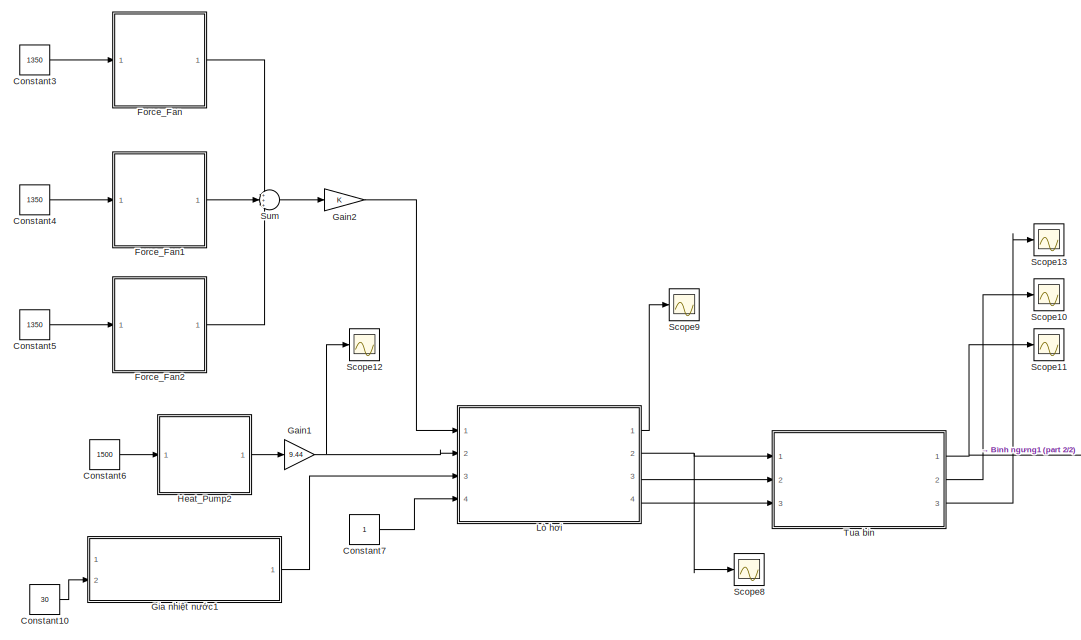
[diagram: root canvas - part 1/2, left side, full height]
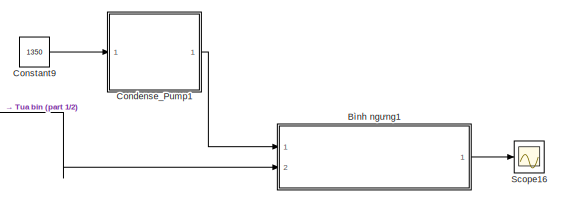
[diagram: root canvas - part 2/2, bottom right region]
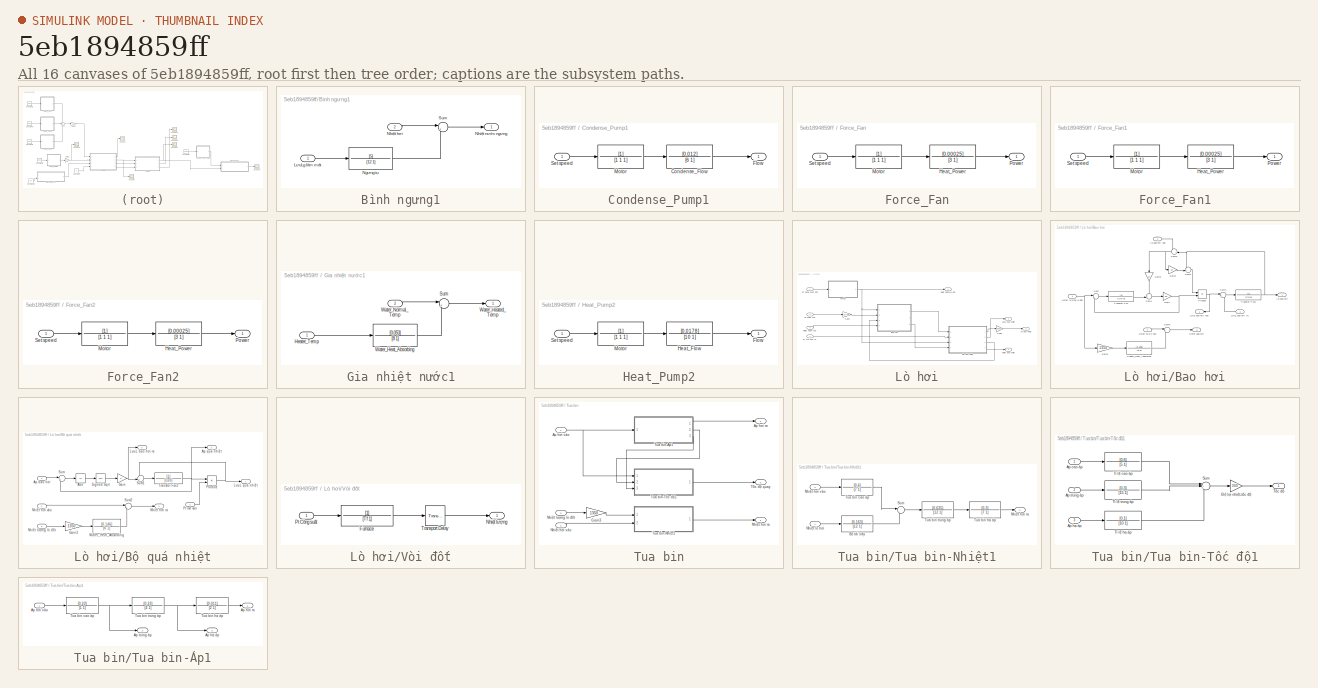
[diagram: thumbnail index - all 16 canvases of the model, root first then tree order]
MODEL slx_5eb1894859ff
KIND model
CONFIG AbsTol = auto
CONFIG EnableMultiTasking = off
CONFIG FixedStep = 0.05
CONFIG MaxStep = auto
CONFIG MinStep = auto
CONFIG RelTol = 1e-3
CONFIG SampleTimeConstraint = Unconstrained
CONFIG Solver = ode5
CONFIG SolverName = ode5
CONFIG StartTime = 0.0
CONFIG StopTime = 1000
BLOCK [SubSystem] Bình ngưng1
  Ports = [2, 1]
  RequestExecContextInheritance = off
BLOCK [Inport] Bình ngưng1/LưuLg làm mát
  IconDisplay = Port number
BLOCK [TransferFcn] Bình ngưng1/Ngưng tụ
  Denominator = [12 1]
  Numerator = [5]
BLOCK [Inport] Bình ngưng1/Nhiệt hơi
  IconDisplay = Port number
  Port = 2
BLOCK [Outport] Bình ngưng1/Nhiệt nước ngưng
  IconDisplay = Port number
BLOCK [Sum] Bình ngưng1/Sum
  IconShape = round
  InputSameDT = off
  Inputs = |+-
  OutDataTypeStr = Inherit: Inherit via internal rule
  Ports = [2, 1]
  SaturateOnIntegerOverflow = off
BLOCK [SubSystem] Condense_Pump1
  Ports = [1, 1]
  RequestExecContextInheritance = off
BLOCK [TransferFcn] Condense_Pump1/Condense_Flow
  Denominator = [6 1]
  Numerator = [0.012]
BLOCK [Outport] Condense_Pump1/Flow
  IconDisplay = Port number
BLOCK [TransferFcn] Condense_Pump1/Motor
  Denominator = [1 1 1]
BLOCK [Inport] Condense_Pump1/Set speed
  IconDisplay = Port number
BLOCK [Constant] Constant10
  Value = 30
BLOCK [Constant] Constant3
  Value = 1350
BLOCK [Constant] Constant4
  Value = 1350
BLOCK [Constant] Constant5
  Value = 1350
BLOCK [Constant] Constant6
  Value = 1500
BLOCK [Constant] Constant7
BLOCK [Constant] Constant9
  Value = 1350
BLOCK [SubSystem] Force_Fan
  Ports = [1, 1]
  RequestExecContextInheritance = off
BLOCK [TransferFcn] Force_Fan/Heat_Power
  Denominator = [3 1]
  Numerator = [0.00025]
BLOCK [TransferFcn] Force_Fan/Motor
  Denominator = [1 1 1]
BLOCK [Outport] Force_Fan/Power
  IconDisplay = Port number
BLOCK [Inport] Force_Fan/Set speed
  IconDisplay = Port number
BLOCK [SubSystem] Force_Fan1
  Ports = [1, 1]
  RequestExecContextInheritance = off
BLOCK [TransferFcn] Force_Fan1/Heat_Power
  Denominator = [3 1]
  Numerator = [0.00025]
BLOCK [TransferFcn] Force_Fan1/Motor
  Denominator = [1 1 1]
BLOCK [Outport] Force_Fan1/Power
  IconDisplay = Port number
BLOCK [Inport] Force_Fan1/Set speed
  IconDisplay = Port number
BLOCK [SubSystem] Force_Fan2
  Ports = [1, 1]
  RequestExecContextInheritance = off
BLOCK [TransferFcn] Force_Fan2/Heat_Power
  Denominator = [3 1]
  Numerator = [0.00025]
BLOCK [TransferFcn] Force_Fan2/Motor
  Denominator = [1 1 1]
BLOCK [Outport] Force_Fan2/Power
  IconDisplay = Port number
BLOCK [Inport] Force_Fan2/Set speed
  IconDisplay = Port number
BLOCK [Gain] Gain1
  Gain = 9.44
  OutDataTypeStr = Inherit: Inherit via internal rule
  ParamDataTypeStr = Inherit: Inherit via internal rule
  SaturateOnIntegerOverflow = off
BLOCK [Gain] Gain2
  OutDataTypeStr = Inherit: Inherit via internal rule
  ParamDataTypeStr = Inherit: Inherit via internal rule
  SaturateOnIntegerOverflow = off
BLOCK [SubSystem] Gia nhiệt nước1
  Ports = [2, 1]
  RequestExecContextInheritance = off
BLOCK [Inport] Gia nhiệt nước1/Heater_Temp
  IconDisplay = Port number
BLOCK [Sum] Gia nhiệt nước1/Sum
  IconShape = round
  InputSameDT = off
  Inputs = |++
  OutDataTypeStr = Inherit: Inherit via internal rule
  Ports = [2, 1]
  SaturateOnIntegerOverflow = off
BLOCK [TransferFcn] Gia nhiệt nước1/Water_Heat_Absorbing
  Denominator = [8 1]
  Numerator = [0.053]
BLOCK [Outport] Gia nhiệt nước1/Water_Heated_Temp
  IconDisplay = Port number
BLOCK [Inport] Gia nhiệt nước1/Water_Normal_Temp
  IconDisplay = Port number
  Port = 2
BLOCK [SubSystem] Heat_Pump2
  Ports = [1, 1]
  RequestExecContextInheritance = off
BLOCK [Outport] Heat_Pump2/Flow
  IconDisplay = Port number
BLOCK [TransferFcn] Heat_Pump2/Heat_Flow
  Denominator = [10 1]
  Numerator = [0.0178]
BLOCK [TransferFcn] Heat_Pump2/Motor
  Denominator = [1 1 1]
BLOCK [Inport] Heat_Pump2/Set speed
  IconDisplay = Port number
BLOCK [SubSystem] Lò hơi
  Ports = [4, 4]
  RequestExecContextInheritance = off
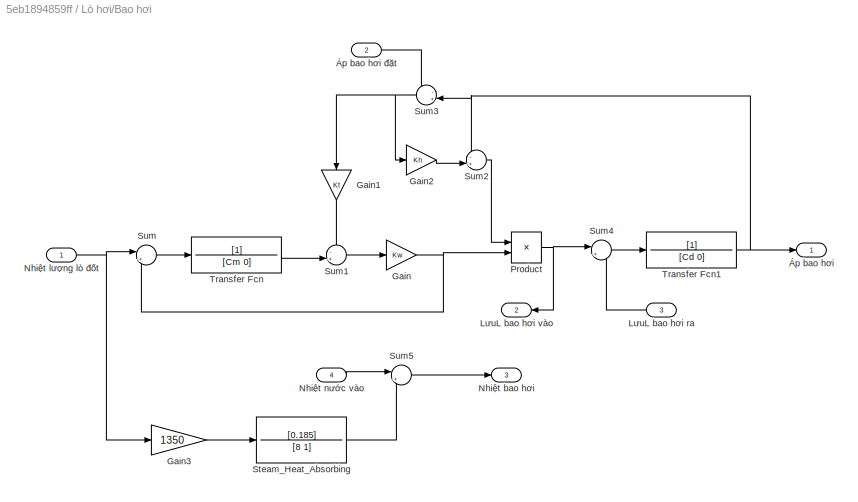
BLOCK [SubSystem] Lò hơi/Bao hơi
  Ports = [4, 3]
  RequestExecContextInheritance = off
BLOCK [Gain] Lò hơi/Bao hơi/Gain
  Gain = Kw
  OutDataTypeStr = Inherit: Inherit via internal rule
  ParamDataTypeStr = Inherit: Inherit via internal rule
  SaturateOnIntegerOverflow = off
BLOCK [Gain] Lò hơi/Bao hơi/Gain1
  Gain = Kt
  OutDataTypeStr = Inherit: Inherit via internal rule
  ParamDataTypeStr = Inherit: Inherit via internal rule
  SaturateOnIntegerOverflow = off
BLOCK [Gain] Lò hơi/Bao hơi/Gain2
  Gain = Kh
  OutDataTypeStr = Inherit: Inherit via internal rule
  ParamDataTypeStr = Inherit: Inherit via internal rule
  SaturateOnIntegerOverflow = off
BLOCK [Gain] Lò hơi/Bao hơi/Gain3
  Gain = 1350
  OutDataTypeStr = Inherit: Inherit via internal rule
  ParamDataTypeStr = Inherit: Inherit via internal rule
  SaturateOnIntegerOverflow = off
BLOCK [Inport] Lò hơi/Bao hơi/LưuL bao hơi ra
  IconDisplay = Port number
  Port = 3
BLOCK [Outport] Lò hơi/Bao hơi/LưuL bao hơi vào
  IconDisplay = Port number
  Port = 2
BLOCK [Outport] Lò hơi/Bao hơi/Nhiệt bao hơi
  IconDisplay = Port number
  Port = 3
BLOCK [Inport] Lò hơi/Bao hơi/Nhiệt lượng lò đốt
  IconDisplay = Port number
BLOCK [Inport] Lò hơi/Bao hơi/Nhiệt nước vào
  IconDisplay = Port number
  Port = 4
BLOCK [Product] Lò hơi/Bao hơi/Product
  InputSameDT = off
  OutDataTypeStr = Inherit: Inherit via internal rule
  Ports = [2, 1]
  RndMeth = Floor
  SaturateOnIntegerOverflow = off
BLOCK [TransferFcn] Lò hơi/Bao hơi/Steam_Heat_Absorbing
  Denominator = [8 1]
  Numerator = [0.185]
BLOCK [Sum] Lò hơi/Bao hơi/Sum
  IconShape = round
  InputSameDT = off
  Inputs = |+-
  OutDataTypeStr = Inherit: Inherit via internal rule
  Ports = [2, 1]
  SaturateOnIntegerOverflow = off
BLOCK [Sum] Lò hơi/Bao hơi/Sum1
  IconShape = round
  InputSameDT = off
  Inputs = -+|
  OutDataTypeStr = Inherit: Inherit via internal rule
  Ports = [2, 1]
  SaturateOnIntegerOverflow = off
BLOCK [Sum] Lò hơi/Bao hơi/Sum2
  IconShape = round
  InputSameDT = off
  Inputs = -+|
  OutDataTypeStr = Inherit: Inherit via internal rule
  Ports = [2, 1]
  SaturateOnIntegerOverflow = off
BLOCK [Sum] Lò hơi/Bao hơi/Sum3
  IconShape = round
  InputSameDT = off
  Inputs = -+|
  OutDataTypeStr = Inherit: Inherit via internal rule
  Ports = [2, 1]
  SaturateOnIntegerOverflow = off
BLOCK [Sum] Lò hơi/Bao hơi/Sum4
  IconShape = round
  InputSameDT = off
  Inputs = |+-
  OutDataTypeStr = Inherit: Inherit via internal rule
  Ports = [2, 1]
  SaturateOnIntegerOverflow = off
BLOCK [Sum] Lò hơi/Bao hơi/Sum5
  IconShape = round
  InputSameDT = off
  Inputs = |++
  OutDataTypeStr = Inherit: Inherit via internal rule
  Ports = [2, 1]
  SaturateOnIntegerOverflow = off
BLOCK [TransferFcn] Lò hơi/Bao hơi/Transfer Fcn
  Denominator = [Cm 0]
BLOCK [TransferFcn] Lò hơi/Bao hơi/Transfer Fcn1
  Denominator = [Cd 0]
BLOCK [Outport] Lò hơi/Bao hơi/Áp bao hơi
  IconDisplay = Port number
BLOCK [Inport] Lò hơi/Bao hơi/Áp bao hơi đặt
  IconDisplay = Port number
  Port = 2
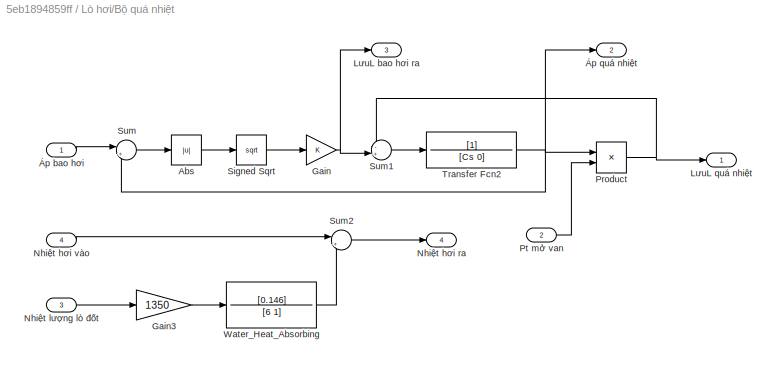
BLOCK [SubSystem] Lò hơi/Bộ quá nhiệt
  Ports = [4, 4]
  RequestExecContextInheritance = off
BLOCK [Abs] Lò hơi/Bộ quá nhiệt/Abs
  SaturateOnIntegerOverflow = off
BLOCK [Gain] Lò hơi/Bộ quá nhiệt/Gain
  Gain = K
  OutDataTypeStr = Inherit: Inherit via internal rule
  ParamDataTypeStr = Inherit: Inherit via internal rule
  SaturateOnIntegerOverflow = off
BLOCK [Gain] Lò hơi/Bộ quá nhiệt/Gain3
  Gain = 1350
  OutDataTypeStr = Inherit: Inherit via internal rule
  ParamDataTypeStr = Inherit: Inherit via internal rule
  SaturateOnIntegerOverflow = off
BLOCK [Outport] Lò hơi/Bộ quá nhiệt/LưuL bao hơi ra
  IconDisplay = Port number
  Port = 3
BLOCK [Outport] Lò hơi/Bộ quá nhiệt/LưuL quá nhiệt
  IconDisplay = Port number
BLOCK [Outport] Lò hơi/Bộ quá nhiệt/Nhiệt hơi ra
  IconDisplay = Port number
  Port = 4
BLOCK [Inport] Lò hơi/Bộ quá nhiệt/Nhiệt hơi vào
  IconDisplay = Port number
  Port = 4
BLOCK [Inport] Lò hơi/Bộ quá nhiệt/Nhiệt lượng lò đốt
  IconDisplay = Port number
  Port = 3
BLOCK [Product] Lò hơi/Bộ quá nhiệt/Product
  InputSameDT = off
  OutDataTypeStr = Inherit: Inherit via internal rule
  Ports = [2, 1]
  RndMeth = Floor
  SaturateOnIntegerOverflow = off
BLOCK [Inport] Lò hơi/Bộ quá nhiệt/Pt mở van
  IconDisplay = Port number
  Port = 2
BLOCK [Sqrt] Lò hơi/Bộ quá nhiệt/Signed Sqrt
BLOCK [Sum] Lò hơi/Bộ quá nhiệt/Sum
  IconShape = round
  InputSameDT = off
  Inputs = |+-
  OutDataTypeStr = Inherit: Inherit via internal rule
  Ports = [2, 1]
  SaturateOnIntegerOverflow = off
BLOCK [Sum] Lò hơi/Bộ quá nhiệt/Sum1
  IconShape = round
  InputSameDT = off
  Inputs = -+|
  OutDataTypeStr = Inherit: Inherit via internal rule
  Ports = [2, 1]
  SaturateOnIntegerOverflow = off
BLOCK [Sum] Lò hơi/Bộ quá nhiệt/Sum2
  IconShape = round
  InputSameDT = off
  Inputs = |++
  OutDataTypeStr = Inherit: Inherit via internal rule
  Ports = [2, 1]
  SaturateOnIntegerOverflow = off
BLOCK [TransferFcn] Lò hơi/Bộ quá nhiệt/Transfer Fcn2
  Denominator = [Cs 0]
BLOCK [TransferFcn] Lò hơi/Bộ quá nhiệt/Water_Heat_Absorbing
  Denominator = [6 1]
  Numerator = [0.146]
BLOCK [Inport] Lò hơi/Bộ quá nhiệt/Áp bao hơi
  IconDisplay = Port number
BLOCK [Outport] Lò hơi/Bộ quá nhiệt/Áp quá nhiệt
  IconDisplay = Port number
  Port = 2
BLOCK [Gain] Lò hơi/Gain1
  Gain = 10.476
  OutDataTypeStr = Inherit: Inherit via internal rule
  ParamDataTypeStr = Inherit: Inherit via internal rule
  SaturateOnIntegerOverflow = off
BLOCK [Gain] Lò hơi/Gain2
  Gain = 0.0954
  OutDataTypeStr = Inherit: Inherit via internal rule
  ParamDataTypeStr = Inherit: Inherit via internal rule
  SaturateOnIntegerOverflow = off
BLOCK [Outport] Lò hơi/LưuL quá nhiệt
  IconDisplay = Port number
BLOCK [Outport] Lò hơi/Nhiệt lượng lò đốt
  IconDisplay = Port number
  Port = 4
BLOCK [Inport] Lò hơi/Nhiệt nước vào
  IconDisplay = Port number
  Port = 3
BLOCK [Outport] Lò hơi/Nhiệt quá nhiệt
  IconDisplay = Port number
  Port = 3
BLOCK [Inport] Lò hơi/Pt Công suất đốt
  IconDisplay = Port number
BLOCK [Inport] Lò hơi/Pt mở van ra
  IconDisplay = Port number
  Port = 4
BLOCK [SubSystem] Lò hơi/Vòi đốt
  Ports = [1, 1]
  RequestExecContextInheritance = off
BLOCK [TransferFcn] Lò hơi/Vòi đốt/Furnace
  Denominator = [Tf 1]
BLOCK [Outport] Lò hơi/Vòi đốt/Nhiệt lượng
  IconDisplay = Port number
BLOCK [Inport] Lò hơi/Vòi đốt/Pt Công suất
  IconDisplay = Port number
BLOCK [TransportDelay] Lò hơi/Vòi đốt/Transport Delay
  DelayTime = Td
  Ports = [1, 1]
BLOCK [Inport] Lò hơi/Áp nước vào
  IconDisplay = Port number
  Port = 2
BLOCK [Outport] Lò hơi/Áp quá nhiệt
  IconDisplay = Port number
  Port = 2
BLOCK [Scope] Scope10
  Floating = off
  NumInputPorts = 1
  Ports = [1]
  ScopeSpecificationString = Simulink.scopes.TimeScopeBlockCfg('CurrentConfiguration', extmgr.ConfigurationSet(extmgr.Configuration('Core','General UI',true),extmgr.Configuration('Core','Source UI',true),extmgr.Configuration('Sources','WiredSimulink',true,'DataLoggingVariableName','ScopeData3'),extmgr.Configuration('Visuals','Time Domain',true,'SerializedDisplays',{struct('MinYLimReal','-0.01031','MaxYLimReal','0.09281','YLab...<+1412ch>
BLOCK [Scope] Scope11
  Floating = off
  NumInputPorts = 1
  Ports = [1]
  ScopeSpecificationString = Simulink.scopes.TimeScopeBlockCfg('CurrentConfiguration', extmgr.ConfigurationSet(extmgr.Configuration('Core','General UI',true),extmgr.Configuration('Core','Source UI',true),extmgr.Configuration('Sources','WiredSimulink',true,'DataLoggingVariableName','ScopeData4'),extmgr.Configuration('Visuals','Time Domain',true,'SerializedDisplays',{struct('MinYLimReal','-12.19729','MaxYLimReal','109.77557','Y...<+1451ch>
BLOCK [Scope] Scope12
  Floating = off
  NumInputPorts = 1
  Ports = [1]
  ScopeSpecificationString = Simulink.scopes.TimeScopeBlockCfg('CurrentConfiguration', extmgr.ConfigurationSet(extmgr.Configuration('Core','General UI',true),extmgr.Configuration('Core','Source UI',true),extmgr.Configuration('Sources','WiredSimulink',true,'DataLoggingVariableName','ScopeData5'),extmgr.Configuration('Visuals','Time Domain',true,'SerializedDisplays',{struct('MinYLimReal','-31.506','MaxYLimReal','283.554','YLabe...<+1436ch>
BLOCK [Scope] Scope13
  Floating = off
  NumInputPorts = 1
  Ports = [1]
  ScopeSpecificationString = Simulink.scopes.TimeScopeBlockCfg('CurrentConfiguration', extmgr.ConfigurationSet(extmgr.Configuration('Core','General UI',true),extmgr.Configuration('Core','Source UI',true),extmgr.Configuration('Sources','WiredSimulink',true,'DataLoggingVariableName','ScopeData1'),extmgr.Configuration('Visuals','Time Domain',true,'SerializedDisplays',{struct('MinYLimReal','-3584.83567','MaxYLimReal','32263.521',...<+1430ch>
BLOCK [Scope] Scope16
  Floating = off
  NumInputPorts = 1
  Ports = [1]
  ScopeSpecificationString = Simulink.scopes.TimeScopeBlockCfg('CurrentConfiguration', extmgr.ConfigurationSet(extmgr.Configuration('Core','General UI',true),extmgr.Configuration('Core','Source UI',true),extmgr.Configuration('Sources','WiredSimulink',true,'DataLoggingVariableName','ScopeData2'),extmgr.Configuration('Visuals','Time Domain',true,'SerializedDisplays',{struct('MinYLimReal','-83.14024','MaxYLimReal','27.65812','YL...<+1449ch>
BLOCK [Scope] Scope8
  Floating = off
  NumInputPorts = 1
  Ports = [1]
  ScopeSpecificationString = Simulink.scopes.TimeScopeBlockCfg('CurrentConfiguration', extmgr.ConfigurationSet(extmgr.Configuration('Core','General UI',true),extmgr.Configuration('Core','Source UI',true),extmgr.Configuration('Sources','WiredSimulink',true,'DataLoggingVariableName','ScopeData1'),extmgr.Configuration('Visuals','Time Domain',true,'SerializedDisplays',{struct('MinYLimReal','-23.05154','MaxYLimReal','207.4639','YL...<+1417ch>
BLOCK [Scope] Scope9
  Floating = off
  NumInputPorts = 1
  Ports = [1]
  ScopeSpecificationString = Simulink.scopes.TimeScopeBlockCfg('CurrentConfiguration', extmgr.ConfigurationSet(extmgr.Configuration('Core','General UI',true),extmgr.Configuration('Core','Source UI',true),extmgr.Configuration('Sources','WiredSimulink',true,'DataLoggingVariableName','ScopeData2'),extmgr.Configuration('Visuals','Time Domain',true,'SerializedDisplays',{struct('MinYLimReal','-144.97827','MaxYLimReal','1304.80443',...<+1429ch>
BLOCK [Sum] Sum
  IconShape = round
  InputSameDT = off
  Inputs = +++
  OutDataTypeStr = Inherit: Inherit via internal rule
  Ports = [3, 1]
  SaturateOnIntegerOverflow = off
BLOCK [SubSystem] Tua bin
  Ports = [3, 3]
  RequestExecContextInheritance = off
BLOCK [Gain] Tua bin/Gain3
  Gain = 1350
  OutDataTypeStr = Inherit: Inherit via internal rule
  ParamDataTypeStr = Inherit: Inherit via internal rule
  SaturateOnIntegerOverflow = off
BLOCK [Outport] Tua bin/Nhiệt hơi ra
  IconDisplay = Port number
BLOCK [Inport] Tua bin/Nhiệt hơi vào
  IconDisplay = Port number
  Port = 2
BLOCK [Inport] Tua bin/Nhiệt lượng lò đốt
  IconDisplay = Port number
  Port = 3
BLOCK [SubSystem] Tua bin/Tua bin-Nhiệt1
  Ports = [2, 1]
  RequestExecContextInheritance = off
BLOCK [TransferFcn] Tua bin/Tua bin-Nhiệt1/Bộ tái sấy
  Denominator = [12 1]
  Numerator = [0.163]
BLOCK [Outport] Tua bin/Tua bin-Nhiệt1/Nhiệt hơi ra
  IconDisplay = Port number
BLOCK [Inport] Tua bin/Tua bin-Nhiệt1/Nhiệt hơi vào
  IconDisplay = Port number
  Port = 2
BLOCK [Inport] Tua bin/Tua bin-Nhiệt1/Nhiệt lò hơi
  IconDisplay = Port number
BLOCK [Sum] Tua bin/Tua bin-Nhiệt1/Sum
  IconShape = round
  InputSameDT = off
  Inputs = |++
  OutDataTypeStr = Inherit: Inherit via internal rule
  Ports = [2, 1]
  SaturateOnIntegerOverflow = off
BLOCK [TransferFcn] Tua bin/Tua bin-Nhiệt1/Tua bin cao áp
  Denominator = [7 1]
  Numerator = [0.6]
BLOCK [TransferFcn] Tua bin/Tua bin-Nhiệt1/Tua bin hạ áp
  Denominator = [7 1]
  Numerator = [0.3]
BLOCK [TransferFcn] Tua bin/Tua bin-Nhiệt1/Tua bin trung áp
  Denominator = [12 1]
  Numerator = [0.635]
BLOCK [SubSystem] Tua bin/Tua bin-Tốc độ1
  Ports = [3, 1]
  RequestExecContextInheritance = off
BLOCK [Sum] Tua bin/Tua bin-Tốc độ1/Sum
  IconShape = round
  InputSameDT = off
  Inputs = |+++
  OutDataTypeStr = Inherit: Inherit via internal rule
  Ports = [3, 1]
  SaturateOnIntegerOverflow = off
BLOCK [TransferFcn] Tua bin/Tua bin-Tốc độ1/Tỉ lệ cao áp
  Denominator = [5 1]
  Numerator = [0.6]
BLOCK [TransferFcn] Tua bin/Tua bin-Tốc độ1/Tỉ lệ hạ áp
  Denominator = [10 1]
  Numerator = [0.1]
BLOCK [TransferFcn] Tua bin/Tua bin-Tốc độ1/Tỉ lệ trung áp
  Denominator = [15 1]
  Numerator = [0.3]
BLOCK [Outport] Tua bin/Tua bin-Tốc độ1/Tốc độ
  IconDisplay = Port number
BLOCK [Inport] Tua bin/Tua bin-Tốc độ1/Áp cao áp
  IconDisplay = Port number
BLOCK [Inport] Tua bin/Tua bin-Tốc độ1/Áp hạ áp
  IconDisplay = Port number
  Port = 3
BLOCK [Inport] Tua bin/Tua bin-Tốc độ1/Áp trung áp
  IconDisplay = Port number
  Port = 2
BLOCK [Gain] Tua bin/Tua bin-Tốc độ1/Độ lợi nhiệt-tốc độ
  Gain = 300
  OutDataTypeStr = Inherit: Inherit via internal rule
  ParamDataTypeStr = Inherit: Inherit via internal rule
  SaturateOnIntegerOverflow = off
BLOCK [SubSystem] Tua bin/Tua bin-Áp1
  Ports = [1, 3]
  RequestExecContextInheritance = off
BLOCK [TransferFcn] Tua bin/Tua bin-Áp1/Tua bin cao áp
  Denominator = [1 1]
  Numerator = [0.23]
BLOCK [TransferFcn] Tua bin/Tua bin-Áp1/Tua bin hạ áp
  Denominator = [2 1]
  Numerator = [0.011]
BLOCK [TransferFcn] Tua bin/Tua bin-Áp1/Tua bin trung áp
  Denominator = [4 1]
  Numerator = [0.23]
BLOCK [Outport] Tua bin/Tua bin-Áp1/Áp hơi ra
  IconDisplay = Port number
BLOCK [Inport] Tua bin/Tua bin-Áp1/Áp hơi vào
  IconDisplay = Port number
BLOCK [Outport] Tua bin/Tua bin-Áp1/Áp hạ áp
  IconDisplay = Port number
  Port = 3
BLOCK [Outport] Tua bin/Tua bin-Áp1/Áp trung áp
  IconDisplay = Port number
  Port = 2
BLOCK [Outport] Tua bin/Tốc độ quay
  IconDisplay = Port number
  Port = 3
BLOCK [Outport] Tua bin/Áp hơi ra
  IconDisplay = Port number
  Port = 2
BLOCK [Inport] Tua bin/Áp hơi vào
  IconDisplay = Port number
LINE Bình ngưng1/LưuLg làm mát:1 -> Bình ngưng1/Ngưng tụ:1
LINE Bình ngưng1/Ngưng tụ:1 -> Bình ngưng1/Sum:2
LINE Bình ngưng1/Nhiệt hơi:1 -> Bình ngưng1/Sum:1
LINE Bình ngưng1/Sum:1 -> Bình ngưng1/Nhiệt nước ngưng:1
LINE Bình ngưng1:1 -> Scope16:1
LINE Condense_Pump1/Condense_Flow:1 -> Condense_Pump1/Flow:1
LINE Condense_Pump1/Motor:1 -> Condense_Pump1/Condense_Flow:1
LINE Condense_Pump1/Set speed:1 -> Condense_Pump1/Motor:1
LINE Condense_Pump1:1 -> Bình ngưng1:1
LINE Constant10:1 -> Gia nhiệt nước1:2
LINE Constant3:1 -> Force_Fan:1
LINE Constant4:1 -> Force_Fan1:1
LINE Constant5:1 -> Force_Fan2:1
LINE Constant6:1 -> Heat_Pump2:1
LINE Constant7:1 -> Lò hơi:4
LINE Constant9:1 -> Condense_Pump1:1
LINE Force_Fan/Heat_Power:1 -> Force_Fan/Power:1
LINE Force_Fan/Motor:1 -> Force_Fan/Heat_Power:1
LINE Force_Fan/Set speed:1 -> Force_Fan/Motor:1
LINE Force_Fan1/Heat_Power:1 -> Force_Fan1/Power:1
LINE Force_Fan1/Motor:1 -> Force_Fan1/Heat_Power:1
LINE Force_Fan1/Set speed:1 -> Force_Fan1/Motor:1
LINE Force_Fan1:1 -> Sum:2
LINE Force_Fan2/Heat_Power:1 -> Force_Fan2/Power:1
LINE Force_Fan2/Motor:1 -> Force_Fan2/Heat_Power:1
LINE Force_Fan2/Set speed:1 -> Force_Fan2/Motor:1
LINE Force_Fan2:1 -> Sum:3
LINE Force_Fan:1 -> Sum:1
NET Gain1:1 -> Lò hơi:2, Scope12:1
LINE Gain2:1 -> Lò hơi:1
LINE Gia nhiệt nước1/Heater_Temp:1 -> Gia nhiệt nước1/Water_Heat_Absorbing:1
LINE Gia nhiệt nước1/Sum:1 -> Gia nhiệt nước1/Water_Heated_Temp:1
LINE Gia nhiệt nước1/Water_Heat_Absorbing:1 -> Gia nhiệt nước1/Sum:2
LINE Gia nhiệt nước1/Water_Normal_Temp:1 -> Gia nhiệt nước1/Sum:1
LINE Gia nhiệt nước1:1 -> Lò hơi:3
LINE Heat_Pump2/Heat_Flow:1 -> Heat_Pump2/Flow:1
LINE Heat_Pump2/Motor:1 -> Heat_Pump2/Heat_Flow:1
LINE Heat_Pump2/Set speed:1 -> Heat_Pump2/Motor:1
LINE Heat_Pump2:1 -> Gain1:1
LINE Lò hơi/Bao hơi/Gain1:1 -> Lò hơi/Bao hơi/Sum1:1
LINE Lò hơi/Bao hơi/Gain2:1 -> Lò hơi/Bao hơi/Sum2:2
LINE Lò hơi/Bao hơi/Gain3:1 -> Lò hơi/Bao hơi/Steam_Heat_Absorbing:1
NET Lò hơi/Bao hơi/Gain:1 -> Lò hơi/Bao hơi/Product:2, Lò hơi/Bao hơi/Sum:2
LINE Lò hơi/Bao hơi/LưuL bao hơi ra:1 -> Lò hơi/Bao hơi/Sum4:2
NET Lò hơi/Bao hơi/Nhiệt lượng lò đốt:1 -> Lò hơi/Bao hơi/Gain3:1, Lò hơi/Bao hơi/Sum:1
LINE Lò hơi/Bao hơi/Nhiệt nước vào:1 -> Lò hơi/Bao hơi/Sum5:1
NET Lò hơi/Bao hơi/Product:1 -> Lò hơi/Bao hơi/LưuL bao hơi vào:1, Lò hơi/Bao hơi/Sum4:1
LINE Lò hơi/Bao hơi/Steam_Heat_Absorbing:1 -> Lò hơi/Bao hơi/Sum5:2
LINE Lò hơi/Bao hơi/Sum1:1 -> Lò hơi/Bao hơi/Gain:1
LINE Lò hơi/Bao hơi/Sum2:1 -> Lò hơi/Bao hơi/Product:1
NET Lò hơi/Bao hơi/Sum3:1 -> Lò hơi/Bao hơi/Gain1:1, Lò hơi/Bao hơi/Gain2:1
LINE Lò hơi/Bao hơi/Sum4:1 -> Lò hơi/Bao hơi/Transfer Fcn1:1
LINE Lò hơi/Bao hơi/Sum5:1 -> Lò hơi/Bao hơi/Nhiệt bao hơi:1
LINE Lò hơi/Bao hơi/Sum:1 -> Lò hơi/Bao hơi/Transfer Fcn:1
NET Lò hơi/Bao hơi/Transfer Fcn1:1 -> Lò hơi/Bao hơi/Sum2:1, Lò hơi/Bao hơi/Sum3:2, Lò hơi/Bao hơi/Áp bao hơi:1
LINE Lò hơi/Bao hơi/Transfer Fcn:1 -> Lò hơi/Bao hơi/Sum1:2
LINE Lò hơi/Bao hơi/Áp bao hơi đặt:1 -> Lò hơi/Bao hơi/Sum3:1
LINE Lò hơi/Bao hơi:1 -> Lò hơi/Bộ quá nhiệt:1
LINE Lò hơi/Bao hơi:3 -> Lò hơi/Bộ quá nhiệt:4
LINE Lò hơi/Bộ quá nhiệt/Abs:1 -> Lò hơi/Bộ quá nhiệt/Signed Sqrt:1
LINE Lò hơi/Bộ quá nhiệt/Gain3:1 -> Lò hơi/Bộ quá nhiệt/Water_Heat_Absorbing:1
NET Lò hơi/Bộ quá nhiệt/Gain:1 -> Lò hơi/Bộ quá nhiệt/LưuL bao hơi ra:1, Lò hơi/Bộ quá nhiệt/Sum1:2
LINE Lò hơi/Bộ quá nhiệt/Nhiệt hơi vào:1 -> Lò hơi/Bộ quá nhiệt/Sum2:1
LINE Lò hơi/Bộ quá nhiệt/Nhiệt lượng lò đốt:1 -> Lò hơi/Bộ quá nhiệt/Gain3:1
NET Lò hơi/Bộ quá nhiệt/Product:1 -> Lò hơi/Bộ quá nhiệt/LưuL quá nhiệt:1, Lò hơi/Bộ quá nhiệt/Sum1:1
LINE Lò hơi/Bộ quá nhiệt/Pt mở van:1 -> Lò hơi/Bộ quá nhiệt/Product:2
LINE Lò hơi/Bộ quá nhiệt/Signed Sqrt:1 -> Lò hơi/Bộ quá nhiệt/Gain:1
LINE Lò hơi/Bộ quá nhiệt/Sum1:1 -> Lò hơi/Bộ quá nhiệt/Transfer Fcn2:1
LINE Lò hơi/Bộ quá nhiệt/Sum2:1 -> Lò hơi/Bộ quá nhiệt/Nhiệt hơi ra:1
LINE Lò hơi/Bộ quá nhiệt/Sum:1 -> Lò hơi/Bộ quá nhiệt/Abs:1
NET Lò hơi/Bộ quá nhiệt/Transfer Fcn2:1 -> Lò hơi/Bộ quá nhiệt/Product:1, Lò hơi/Bộ quá nhiệt/Sum:2, Lò hơi/Bộ quá nhiệt/Áp quá nhiệt:1
LINE Lò hơi/Bộ quá nhiệt/Water_Heat_Absorbing:1 -> Lò hơi/Bộ quá nhiệt/Sum2:2
LINE Lò hơi/Bộ quá nhiệt/Áp bao hơi:1 -> Lò hơi/Bộ quá nhiệt/Sum:1
LINE Lò hơi/Bộ quá nhiệt:1 -> Lò hơi/LưuL quá nhiệt:1
LINE Lò hơi/Bộ quá nhiệt:2 -> Lò hơi/Gain2:1
LINE Lò hơi/Bộ quá nhiệt:3 -> Lò hơi/Bao hơi:3
LINE Lò hơi/Bộ quá nhiệt:4 -> Lò hơi/Nhiệt quá nhiệt:1
LINE Lò hơi/Gain1:1 -> Lò hơi/Bao hơi:2
LINE Lò hơi/Gain2:1 -> Lò hơi/Áp quá nhiệt:1
LINE Lò hơi/Nhiệt nước vào:1 -> Lò hơi/Bao hơi:4
LINE Lò hơi/Pt Công suất đốt:1 -> Lò hơi/Vòi đốt:1
LINE Lò hơi/Pt mở van ra:1 -> Lò hơi/Bộ quá nhiệt:2
LINE Lò hơi/Vòi đốt/Furnace:1 -> Lò hơi/Vòi đốt/Transport Delay:1
LINE Lò hơi/Vòi đốt/Pt Công suất:1 -> Lò hơi/Vòi đốt/Furnace:1
LINE Lò hơi/Vòi đốt/Transport Delay:1 -> Lò hơi/Vòi đốt/Nhiệt lượng:1
NET Lò hơi/Vòi đốt:1 -> Lò hơi/Bao hơi:1, Lò hơi/Bộ quá nhiệt:3, Lò hơi/Nhiệt lượng lò đốt:1
LINE Lò hơi/Áp nước vào:1 -> Lò hơi/Gain1:1
LINE Lò hơi:1 -> Scope9:1
NET Lò hơi:2 -> Scope8:1, Tua bin:1
LINE Lò hơi:3 -> Tua bin:2
LINE Lò hơi:4 -> Tua bin:3
LINE Sum:1 -> Gain2:1
LINE Tua bin/Gain3:1 -> Tua bin/Tua bin-Nhiệt1:1
LINE Tua bin/Nhiệt hơi vào:1 -> Tua bin/Tua bin-Nhiệt1:2
LINE Tua bin/Nhiệt lượng lò đốt:1 -> Tua bin/Gain3:1
LINE Tua bin/Tua bin-Nhiệt1/Bộ tái sấy:1 -> Tua bin/Tua bin-Nhiệt1/Sum:2
LINE Tua bin/Tua bin-Nhiệt1/Nhiệt hơi vào:1 -> Tua bin/Tua bin-Nhiệt1/Tua bin cao áp:1
LINE Tua bin/Tua bin-Nhiệt1/Nhiệt lò hơi:1 -> Tua bin/Tua bin-Nhiệt1/Bộ tái sấy:1
LINE Tua bin/Tua bin-Nhiệt1/Sum:1 -> Tua bin/Tua bin-Nhiệt1/Tua bin trung áp:1
LINE Tua bin/Tua bin-Nhiệt1/Tua bin cao áp:1 -> Tua bin/Tua bin-Nhiệt1/Sum:1
LINE Tua bin/Tua bin-Nhiệt1/Tua bin hạ áp:1 -> Tua bin/Tua bin-Nhiệt1/Nhiệt hơi ra:1
LINE Tua bin/Tua bin-Nhiệt1/Tua bin trung áp:1 -> Tua bin/Tua bin-Nhiệt1/Tua bin hạ áp:1
LINE Tua bin/Tua bin-Nhiệt1:1 -> Tua bin/Nhiệt hơi ra:1
LINE Tua bin/Tua bin-Tốc độ1/Sum:1 -> Tua bin/Tua bin-Tốc độ1/Độ lợi nhiệt-tốc độ:1
LINE Tua bin/Tua bin-Tốc độ1/Tỉ lệ cao áp:1 -> Tua bin/Tua bin-Tốc độ1/Sum:1
LINE Tua bin/Tua bin-Tốc độ1/Tỉ lệ hạ áp:1 -> Tua bin/Tua bin-Tốc độ1/Sum:3
LINE Tua bin/Tua bin-Tốc độ1/Tỉ lệ trung áp:1 -> Tua bin/Tua bin-Tốc độ1/Sum:2
LINE Tua bin/Tua bin-Tốc độ1/Áp cao áp:1 -> Tua bin/Tua bin-Tốc độ1/Tỉ lệ cao áp:1
LINE Tua bin/Tua bin-Tốc độ1/Áp hạ áp:1 -> Tua bin/Tua bin-Tốc độ1/Tỉ lệ hạ áp:1
LINE Tua bin/Tua bin-Tốc độ1/Áp trung áp:1 -> Tua bin/Tua bin-Tốc độ1/Tỉ lệ trung áp:1
LINE Tua bin/Tua bin-Tốc độ1/Độ lợi nhiệt-tốc độ:1 -> Tua bin/Tua bin-Tốc độ1/Tốc độ:1
LINE Tua bin/Tua bin-Tốc độ1:1 -> Tua bin/Tốc độ quay:1
NET Tua bin/Tua bin-Áp1/Tua bin cao áp:1 -> Tua bin/Tua bin-Áp1/Tua bin trung áp:1, Tua bin/Tua bin-Áp1/Áp trung áp:1
LINE Tua bin/Tua bin-Áp1/Tua bin hạ áp:1 -> Tua bin/Tua bin-Áp1/Áp hơi ra:1
NET Tua bin/Tua bin-Áp1/Tua bin trung áp:1 -> Tua bin/Tua bin-Áp1/Tua bin hạ áp:1, Tua bin/Tua bin-Áp1/Áp hạ áp:1
LINE Tua bin/Tua bin-Áp1/Áp hơi vào:1 -> Tua bin/Tua bin-Áp1/Tua bin cao áp:1
LINE Tua bin/Tua bin-Áp1:1 -> Tua bin/Áp hơi ra:1
LINE Tua bin/Tua bin-Áp1:2 -> Tua bin/Tua bin-Tốc độ1:2
LINE Tua bin/Tua bin-Áp1:3 -> Tua bin/Tua bin-Tốc độ1:3
NET Tua bin/Áp hơi vào:1 -> Tua bin/Tua bin-Tốc độ1:1, Tua bin/Tua bin-Áp1:1
NET Tua bin:1 -> Bình ngưng1:2, Scope11:1
LINE Tua bin:2 -> Scope10:1
LINE Tua bin:3 -> Scope13:1
note: NET lines group one-source signal fan-out (src -> all destinations, sorted); 1:1 wires keep LINE
